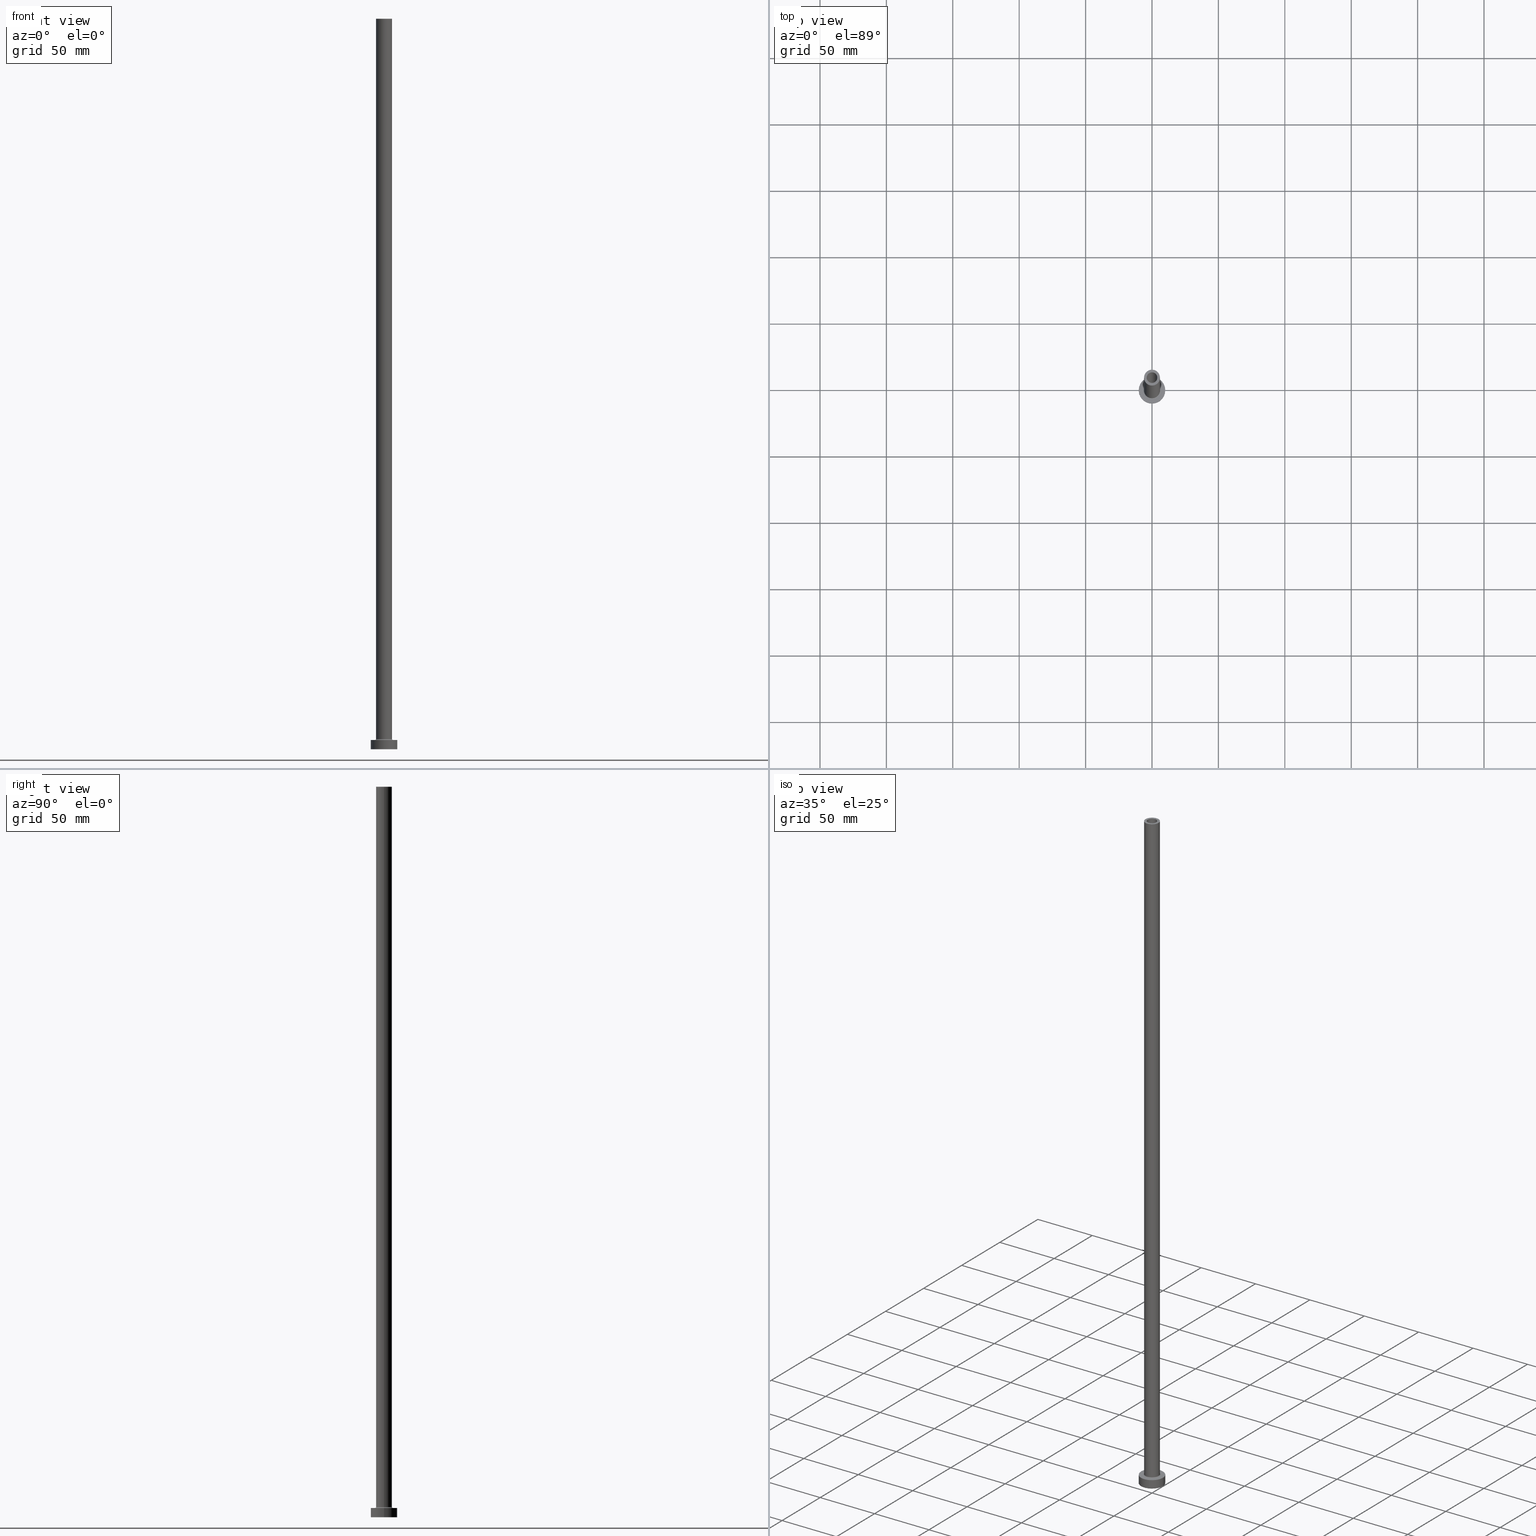
[diagram: canonical four-view strip — front | top / right | iso, engineering-drawing reading convention]
A machine part, canonical four-view strip (front | top / right | iso — engineering-drawing reading convention). The complete STEP part file that produces these views, byte-faithful:
ISO-10303-21;
HEADER;
FILE_DESCRIPTION (( 'STEP AP203' ),
    '1' );
FILE_NAME ('b632.STEP',
    '2023-02-13T12:43:19',
    ( '' ),
    ( '' ),
    'SwSTEP 2.0',
    'SolidWorks 2019',
    '' );
FILE_SCHEMA (( 'CONFIG_CONTROL_DESIGN' ));
ENDSEC;

DATA;
#1 = FACE_BOUND ( 'NONE', #398, .T. ) ;
#2 = CYLINDRICAL_SURFACE ( 'NONE', #156, 4.150000000000000355 ) ;
#3 = DIRECTION ( 'NONE',  ( -1.000000000000000000, 1.224646799147353454E-16, 0.000000000000000000 ) ) ;
#4 = ADVANCED_FACE ( 'NONE', ( #428 ), #293, .F. ) ;
#5 = ORIENTED_EDGE ( 'NONE', *, *, #216, .T. ) ;
#6 = DIRECTION ( 'NONE',  ( 1.000000000000000000, 0.000000000000000000, 0.000000000000000000 ) ) ;
#7 = CIRCLE ( 'NONE', #397, 4.150000000000000355 ) ;
#8 = CARTESIAN_POINT ( 'NONE',  ( -6.700000000000001066, 8.205133554287267548E-16, 7.000000000000020428 ) ) ;
#9 = VERTEX_POINT ( 'NONE', #359 ) ;
#10 = CARTESIAN_POINT ( 'NONE',  ( -6.000000000000000888, 0.000000000000000000, 7.700000000000040146 ) ) ;
#11 = EDGE_CURVE ( 'NONE', #337, #25, #181, .T. ) ;
#12 = ORIENTED_EDGE ( 'NONE', *, *, #277, .F. ) ;
#13 = CYLINDRICAL_SURFACE ( 'NONE', #228, 4.000000000000000000 ) ;
#14 = ORIENTED_EDGE ( 'NONE', *, *, #27, .F. ) ;
#15 = AXIS2_PLACEMENT_3D ( 'NONE', #103, #211, #147 ) ;
#16 = AXIS2_PLACEMENT_3D ( 'NONE', #329, #396, #351 ) ;
#17 = DIRECTION ( 'NONE',  ( 1.000000000000000000, 0.000000000000000000, 0.000000000000000000 ) ) ;
#18 = VERTEX_POINT ( 'NONE', #457 ) ;
#19 = ADVANCED_FACE ( 'NONE', ( #392 ), #2, .F. ) ;
#20 = CARTESIAN_POINT ( 'NONE',  ( 0.000000000000000000, 0.000000000000000000, 505.0000000000000000 ) ) ;
#21 = ORIENTED_EDGE ( 'NONE', *, *, #288, .F. ) ;
#22 = CIRCLE ( 'NONE', #15, 10.00000000000000000 ) ;
#23 = ORIENTED_EDGE ( 'NONE', *, *, #421, .T. ) ;
#24 = LOCAL_TIME ( 13, 43, 19.00000000000000000, #242 ) ;
#25 = VERTEX_POINT ( 'NONE', #325 ) ;
#26 = DIRECTION ( 'NONE',  ( -0.000000000000000000, -0.000000000000000000, -1.000000000000000000 ) ) ;
#27 = EDGE_CURVE ( 'NONE', #56, #9, #254, .T. ) ;
#28 = COORDINATED_UNIVERSAL_TIME_OFFSET ( 1, 0, .AHEAD. ) ;
#29 = LINE ( 'NONE', #107, #362 ) ;
#30 = PERSON_AND_ORGANIZATION_ROLE ( 'creator' ) ;
#31 = ORIENTED_EDGE ( 'NONE', *, *, #399, .F. ) ;
#32 = DIRECTION ( 'NONE',  ( 0.000000000000000000, 0.000000000000000000, 1.000000000000000000 ) ) ;
#33 = AXIS2_PLACEMENT_3D ( 'NONE', #55, #344, #204 ) ;
#34 = PLANE ( 'NONE',  #342 ) ;
#35 = DIRECTION ( 'NONE',  ( 1.000000000000000000, 0.000000000000000000, 0.000000000000000000 ) ) ;
#36 = CARTESIAN_POINT ( 'NONE',  ( 0.000000000000000000, 0.000000000000000000, 550.0000000000000000 ) ) ;
#37 = CARTESIAN_POINT ( 'NONE',  ( -4.000000000000000000, 0.000000000000000000, 550.0000000000000000 ) ) ;
#38 = CARTESIAN_POINT ( 'NONE',  ( -6.000000000000000888, 0.000000000000000000, 550.0000000000000000 ) ) ;
#39 = APPROVAL_PERSON_ORGANIZATION ( #443, #111, #376 ) ;
#40 = DIRECTION ( 'NONE',  ( -1.000000000000000000, 0.000000000000000000, 0.000000000000000000 ) ) ;
#41 = CARTESIAN_POINT ( 'NONE',  ( 10.00000000000000000, 1.224646799147353256E-15, 7.000000000000000000 ) ) ;
#42 = DIRECTION ( 'NONE',  ( 0.000000000000000000, 0.000000000000000000, 1.000000000000000000 ) ) ;
#43 = ORIENTED_EDGE ( 'NONE', *, *, #272, .F. ) ;
#44 = DIRECTION ( 'NONE',  ( -1.000000000000000000, 0.000000000000000000, 0.000000000000000000 ) ) ;
#45 = COORDINATED_UNIVERSAL_TIME_OFFSET ( 1, 0, .AHEAD. ) ;
#46 = CC_DESIGN_APPROVAL ( #368, ( #175 ) ) ;
#47 = VERTEX_POINT ( 'NONE', #8 ) ;
#48 = DIRECTION ( 'NONE',  ( 1.000000000000000000, 0.000000000000000000, 0.000000000000000000 ) ) ;
#49 = APPROVAL_DATE_TIME ( #438, #111 ) ;
#50 = ORIENTED_EDGE ( 'NONE', *, *, #108, .T. ) ;
#51 = DATE_AND_TIME ( #265, #153 ) ;
#52 = AXIS2_PLACEMENT_3D ( 'NONE', #324, #251, #208 ) ;
#53 = FACE_OUTER_BOUND ( 'NONE', #116, .T. ) ;
#54 = CC_DESIGN_APPROVAL ( #111, ( #149 ) ) ;
#55 = CARTESIAN_POINT ( 'NONE',  ( 0.000000000000000000, 0.000000000000000000, 550.0000000000000000 ) ) ;
#56 = VERTEX_POINT ( 'NONE', #180 ) ;
#57 = CARTESIAN_POINT ( 'NONE',  ( -4.150000000000000355, 0.000000000000000000, 0.000000000000000000 ) ) ;
#58 = CALENDAR_DATE ( 2023, 13, 2 ) ;
#59 = ORIENTED_EDGE ( 'NONE', *, *, #295, .F. ) ;
#60 = AXIS2_PLACEMENT_3D ( 'NONE', #401, #305, #48 ) ;
#61 = ORIENTED_EDGE ( 'NONE', *, *, #399, .T. ) ;
#62 = ADVANCED_FACE ( 'NONE', ( #110 ), #413, .F. ) ;
#63 = AXIS2_PLACEMENT_3D ( 'NONE', #441, #377, #163 ) ;
#64 = APPROVAL_DATE_TIME ( #455, #327 ) ;
#65 = ORIENTED_EDGE ( 'NONE', *, *, #152, .F. ) ;
#66 = FACE_OUTER_BOUND ( 'NONE', #177, .T. ) ;
#67 = ORIENTED_EDGE ( 'NONE', *, *, #203, .F. ) ;
#68 = CYLINDRICAL_SURFACE ( 'NONE', #127, 6.000000000000000888 ) ;
#69 = DIRECTION ( 'NONE',  ( 0.000000000000000000, 0.000000000000000000, -1.000000000000000000 ) ) ;
#70 = EDGE_CURVE ( 'NONE', #414, #56, #319, .T. ) ;
#71 = DIRECTION ( 'NONE',  ( 1.000000000000000000, 0.000000000000000000, -0.000000000000000000 ) ) ;
#72 = CIRCLE ( 'NONE', #393, 10.00000000000000000 ) ;
#73 = DIRECTION ( 'NONE',  ( 0.000000000000000000, 0.000000000000000000, -1.000000000000000000 ) ) ;
#74 = CC_DESIGN_PERSON_AND_ORGANIZATION_ASSIGNMENT ( #252, #170, ( #175 ) ) ;
#75 = EDGE_CURVE ( 'NONE', #132, #341, #461, .T. ) ;
#76 = CARTESIAN_POINT ( 'NONE',  ( 0.000000000000000000, 0.000000000000000000, 7.000000000000000000 ) ) ;
#77 = CARTESIAN_POINT ( 'NONE',  ( 0.000000000000000000, 0.000000000000000000, 505.0000000000000000 ) ) ;
#78 = CARTESIAN_POINT ( 'NONE',  ( 0.000000000000000000, 0.000000000000000000, 550.0000000000000000 ) ) ;
#79 = AXIS2_PLACEMENT_3D ( 'NONE', #214, #388, #361 ) ;
#80 = CARTESIAN_POINT ( 'NONE',  ( 0.000000000000000000, 0.000000000000000000, 505.0000000000000000 ) ) ;
#81 = CIRCLE ( 'NONE', #346, 6.700000000000001066 ) ;
#82 = ORIENTED_EDGE ( 'NONE', *, *, #108, .F. ) ;
#83 = CARTESIAN_POINT ( 'NONE',  ( 0.000000000000000000, 0.000000000000000000, 7.700000000000040146 ) ) ;
#84 = VECTOR ( 'NONE', #194, 1000.000000000000000 ) ;
#85 = APPROVAL_STATUS ( 'not_yet_approved' ) ;
#86 = DIRECTION ( 'NONE',  ( -1.000000000000000000, 0.000000000000000000, 0.000000000000000000 ) ) ;
#87 = CARTESIAN_POINT ( 'NONE',  ( -6.000000000000000888, 0.000000000000000000, 550.0000000000000000 ) ) ;
#88 = VERTEX_POINT ( 'NONE', #321 ) ;
#89 = VECTOR ( 'NONE', #207, 1000.000000000000000 ) ;
#90 = EDGE_CURVE ( 'NONE', #25, #341, #22, .T. ) ;
#91 = CARTESIAN_POINT ( 'NONE',  ( 4.150000000000000355, 5.082284216461515156E-16, 516.7379725676967155 ) ) ;
#92 = APPROVAL_STATUS ( 'not_yet_approved' ) ;
#93 = ORIENTED_EDGE ( 'NONE', *, *, #203, .T. ) ;
#94 = CLOSED_SHELL ( 'NONE', ( #144, #4, #366, #193, #456, #197, #389, #248, #379, #282, #62, #19, #133, #439 ) ) ;
#95 = PERSON_AND_ORGANIZATION ( #316, #246 ) ;
#96 = ORIENTED_EDGE ( 'NONE', *, *, #101, .F. ) ;
#97 = LOCAL_TIME ( 13, 43, 19.00000000000000000, #45 ) ;
#98 = DIRECTION ( 'NONE',  ( 0.000000000000000000, 0.000000000000000000, 1.000000000000000000 ) ) ;
#99 = CALENDAR_DATE ( 2023, 13, 2 ) ;
#100 = ORIENTED_EDGE ( 'NONE', *, *, #419, .T. ) ;
#101 = EDGE_CURVE ( 'NONE', #186, #47, #81, .T. ) ;
#102 = DIRECTION ( 'NONE',  ( 0.000000000000000000, 0.000000000000000000, 1.000000000000000000 ) ) ;
#103 = CARTESIAN_POINT ( 'NONE',  ( 0.000000000000000000, 0.000000000000000000, 0.000000000000000000 ) ) ;
#104 = VERTEX_POINT ( 'NONE', #291 ) ;
#105 = PLANE ( 'NONE',  #459 ) ;
#106 = AXIS2_PLACEMENT_3D ( 'NONE', #118, #233, #86 ) ;
#107 = CARTESIAN_POINT ( 'NONE',  ( 6.000000000000000888, 7.347880794884120722E-16, 550.0000000000000000 ) ) ;
#108 = EDGE_CURVE ( 'NONE', #9, #445, #141, .T. ) ;
#109 = LOCAL_TIME ( 13, 43, 19.00000000000000000, #28 ) ;
#110 = FACE_OUTER_BOUND ( 'NONE', #231, .T. ) ;
#111 = APPROVAL ( #303, 'NEUR�EN�' ) ;
#112 = ORIENTED_EDGE ( 'NONE', *, *, #90, .T. ) ;
#113 = AXIS2_PLACEMENT_3D ( 'NONE', #352, #138, #320 ) ;
#114 = ORIENTED_EDGE ( 'NONE', *, *, #218, .T. ) ;
#115 = EDGE_CURVE ( 'NONE', #341, #25, #402, .T. ) ;
#116 = EDGE_LOOP ( 'NONE', ( #128, #350, #357, #232 ) ) ;
#117 = DIRECTION ( 'NONE',  ( -0.000000000000000000, -0.000000000000000000, -1.000000000000000000 ) ) ;
#118 = CARTESIAN_POINT ( 'NONE',  ( 0.000000000000000000, 0.000000000000000000, 7.000000000000000000 ) ) ;
#119 = ORIENTED_EDGE ( 'NONE', *, *, #272, .T. ) ;
#120 =( GEOMETRIC_REPRESENTATION_CONTEXT ( 3 ) GLOBAL_UNCERTAINTY_ASSIGNED_CONTEXT ( ( #206 ) ) GLOBAL_UNIT_ASSIGNED_CONTEXT ( ( #404, #308, #406 ) ) REPRESENTATION_CONTEXT ( 'NONE', 'WORKASPACE' ) );
#121 = CYLINDRICAL_SURFACE ( 'NONE', #106, 10.00000000000000000 ) ;
#122 = PERSON_AND_ORGANIZATION ( #316, #246 ) ;
#123 = LINE ( 'NONE', #135, #84 ) ;
#124 = VECTOR ( 'NONE', #73, 1000.000000000000000 ) ;
#125 = CARTESIAN_POINT ( 'NONE',  ( 0.000000000000000000, 0.000000000000000000, 550.0000000000000000 ) ) ;
#126 = PERSON_AND_ORGANIZATION_ROLE ( 'design_supplier' ) ;
#127 = AXIS2_PLACEMENT_3D ( 'NONE', #78, #219, #209 ) ;
#128 = ORIENTED_EDGE ( 'NONE', *, *, #421, .F. ) ;
#129 = EDGE_CURVE ( 'NONE', #47, #186, #423, .T. ) ;
#130 = CYLINDRICAL_SURFACE ( 'NONE', #261, 6.000000000000000888 ) ;
#131 = SHAPE_DEFINITION_REPRESENTATION ( #382, #338 ) ;
#132 = VERTEX_POINT ( 'NONE', #41 ) ;
#133 = ADVANCED_FACE ( 'NONE', ( #184, #432 ), #400, .F. ) ;
#134 = EDGE_LOOP ( 'NONE', ( #326, #286, #198, #67 ) ) ;
#135 = CARTESIAN_POINT ( 'NONE',  ( 4.000000000000000000, 4.898587196589412829E-16, 550.0000000000000000 ) ) ;
#136 = VECTOR ( 'NONE', #387, 1000.000000000000000 ) ;
#137 = DIRECTION ( 'NONE',  ( 0.000000000000000000, 0.000000000000000000, 1.000000000000000000 ) ) ;
#138 = DIRECTION ( 'NONE',  ( 0.000000000000000000, -1.000000000000000000, 0.000000000000000000 ) ) ;
#139 = CARTESIAN_POINT ( 'NONE',  ( 0.000000000000000000, 0.000000000000000000, 516.7379725676967155 ) ) ;
#140 = DIRECTION ( 'NONE',  ( 0.000000000000000000, 0.000000000000000000, 1.000000000000000000 ) ) ;
#141 = CIRCLE ( 'NONE', #222, 4.000000000000000000 ) ;
#142 = ORIENTED_EDGE ( 'NONE', *, *, #460, .F. ) ;
#143 = CIRCLE ( 'NONE', #16, 4.150000000000000355 ) ;
#144 = ADVANCED_FACE ( 'NONE', ( #333 ), #13, .F. ) ;
#145 = CARTESIAN_POINT ( 'NONE',  ( 0.000000000000000000, 0.000000000000000000, 7.700000000000040146 ) ) ;
#146 = EDGE_CURVE ( 'NONE', #247, #18, #7, .T. ) ;
#147 = DIRECTION ( 'NONE',  ( 1.000000000000000000, 0.000000000000000000, 0.000000000000000000 ) ) ;
#148 = APPLICATION_PROTOCOL_DEFINITION ( 'international standard', 'config_control_design', 1994, #165 ) ;
#149 = PRODUCT_DEFINITION ( 'NEZN�M�', '', #450, #225 ) ;
#150 = DIRECTION ( 'NONE',  ( 1.000000000000000000, 0.000000000000000000, 0.000000000000000000 ) ) ;
#151 = ORIENTED_EDGE ( 'NONE', *, *, #237, .F. ) ;
#152 = EDGE_CURVE ( 'NONE', #407, #373, #187, .T. ) ;
#153 = LOCAL_TIME ( 13, 43, 19.00000000000000000, #189 ) ;
#154 = CC_DESIGN_PERSON_AND_ORGANIZATION_ASSIGNMENT ( #95, #126, ( #450 ) ) ;
#155 = MECHANICAL_CONTEXT ( 'NONE', #427, 'mechanical' ) ;
#156 = AXIS2_PLACEMENT_3D ( 'NONE', #139, #69, #40 ) ;
#157 = MANIFOLD_SOLID_BREP ( 'Odebrat vysunut�m4', #94 ) ;
#158 = DIRECTION ( 'NONE',  ( 1.000000000000000000, 0.000000000000000000, 0.000000000000000000 ) ) ;
#159 = ORIENTED_EDGE ( 'NONE', *, *, #11, .T. ) ;
#160 = CARTESIAN_POINT ( 'NONE',  ( 0.000000000000000000, 0.000000000000000000, 7.000000000000000000 ) ) ;
#161 = CALENDAR_DATE ( 2023, 13, 2 ) ;
#162 = DIRECTION ( 'NONE',  ( 0.000000000000000000, 0.000000000000000000, 1.000000000000000000 ) ) ;
#163 = DIRECTION ( 'NONE',  ( -1.000000000000000000, 0.000000000000000000, 0.000000000000000000 ) ) ;
#164 = AXIS2_PLACEMENT_3D ( 'NONE', #220, #354, #171 ) ;
#165 = APPLICATION_CONTEXT ( 'configuration controlled 3d designs of mechanical parts and assemblies' ) ;
#166 = CC_DESIGN_DATE_AND_TIME_ASSIGNMENT ( #51, #274, ( #149 ) ) ;
#167 = DIRECTION ( 'NONE',  ( 1.000000000000000000, 0.000000000000000000, 0.000000000000000000 ) ) ;
#168 = APPROVAL_DATE_TIME ( #313, #368 ) ;
#169 = CARTESIAN_POINT ( 'NONE',  ( 0.000000000000000000, 0.000000000000000000, 505.0000000000000000 ) ) ;
#170 = PERSON_AND_ORGANIZATION_ROLE ( 'classification_officer' ) ;
#171 = DIRECTION ( 'NONE',  ( -1.000000000000000000, 0.000000000000000000, 0.000000000000000000 ) ) ;
#172 = DIRECTION ( 'NONE',  ( 0.000000000000000000, 0.000000000000000000, 1.000000000000000000 ) ) ;
#173 = DIRECTION ( 'NONE',  ( -0.000000000000000000, -0.000000000000000000, -1.000000000000000000 ) ) ;
#174 = CIRCLE ( 'NONE', #182, 6.000000000000000888 ) ;
#175 = SECURITY_CLASSIFICATION ( '', '', #250 ) ;
#176 = EDGE_LOOP ( 'NONE', ( #50, #93 ) ) ;
#177 = EDGE_LOOP ( 'NONE', ( #100, #23 ) ) ;
#178 = CARTESIAN_POINT ( 'NONE',  ( 0.000000000000000000, 0.000000000000000000, 7.000000000000000000 ) ) ;
#179 = LINE ( 'NONE', #294, #322 ) ;
#180 = CARTESIAN_POINT ( 'NONE',  ( -4.000000000000000000, 0.000000000000000000, 550.0000000000000000 ) ) ;
#181 = LINE ( 'NONE', #331, #360 ) ;
#182 = AXIS2_PLACEMENT_3D ( 'NONE', #287, #137, #358 ) ;
#183 = DIRECTION ( 'NONE',  ( -0.000000000000000000, -0.000000000000000000, -1.000000000000000000 ) ) ;
#184 = FACE_BOUND ( 'NONE', #176, .T. ) ;
#185 = DIRECTION ( 'NONE',  ( 1.000000000000000000, 0.000000000000000000, -0.000000000000000000 ) ) ;
#186 = VERTEX_POINT ( 'NONE', #447 ) ;
#187 = CIRCLE ( 'NONE', #267, 6.000000000000000888 ) ;
#188 = DIRECTION ( 'NONE',  ( 0.000000000000000000, 0.000000000000000000, -1.000000000000000000 ) ) ;
#189 = COORDINATED_UNIVERSAL_TIME_OFFSET ( 1, 0, .AHEAD. ) ;
#190 = ORIENTED_EDGE ( 'NONE', *, *, #152, .T. ) ;
#191 = VECTOR ( 'NONE', #173, 1000.000000000000000 ) ;
#192 = ORIENTED_EDGE ( 'NONE', *, *, #223, .F. ) ;
#193 = ADVANCED_FACE ( 'NONE', ( #310 ), #130, .T. ) ;
#194 = DIRECTION ( 'NONE',  ( 0.000000000000000000, 0.000000000000000000, -1.000000000000000000 ) ) ;
#195 = AXIS2_PLACEMENT_3D ( 'NONE', #20, #240, #384 ) ;
#196 = CARTESIAN_POINT ( 'NONE',  ( 0.000000000000000000, 0.000000000000000000, 550.0000000000000000 ) ) ;
#197 = ADVANCED_FACE ( 'NONE', ( #244 ), #412, .T. ) ;
#198 = ORIENTED_EDGE ( 'NONE', *, *, #27, .T. ) ;
#199 = FACE_OUTER_BOUND ( 'NONE', #283, .T. ) ;
#200 = CALENDAR_DATE ( 2023, 13, 2 ) ;
#201 = PRODUCT_RELATED_PRODUCT_CATEGORY ( 'detail', '', ( #370 ) ) ;
#202 = EDGE_LOOP ( 'NONE', ( #31, #309, #190, #280 ) ) ;
#203 = EDGE_CURVE ( 'NONE', #445, #9, #409, .T. ) ;
#204 = DIRECTION ( 'NONE',  ( 1.000000000000000000, 0.000000000000000000, 0.000000000000000000 ) ) ;
#205 = PERSON_AND_ORGANIZATION ( #316, #246 ) ;
#206 = UNCERTAINTY_MEASURE_WITH_UNIT (LENGTH_MEASURE( 1.000000000000000082E-05 ), #404, 'distance_accuracy_value', 'NONE');
#207 = DIRECTION ( 'NONE',  ( 0.000000000000000000, 0.000000000000000000, -1.000000000000000000 ) ) ;
#208 = DIRECTION ( 'NONE',  ( 1.000000000000000000, 0.000000000000000000, -0.000000000000000000 ) ) ;
#209 = DIRECTION ( 'NONE',  ( -1.000000000000000000, 0.000000000000000000, 0.000000000000000000 ) ) ;
#210 = CC_DESIGN_PERSON_AND_ORGANIZATION_ASSIGNMENT ( #122, #270, ( #149 ) ) ;
#211 = DIRECTION ( 'NONE',  ( 0.000000000000000000, 0.000000000000000000, 1.000000000000000000 ) ) ;
#212 = ORIENTED_EDGE ( 'NONE', *, *, #146, .T. ) ;
#213 = CIRCLE ( 'NONE', #353, 4.150000000000000355 ) ;
#214 = CARTESIAN_POINT ( 'NONE',  ( 0.000000000000000000, 0.000000000000000000, 7.700000000000040146 ) ) ;
#215 = CARTESIAN_POINT ( 'NONE',  ( 0.000000000000000000, 0.000000000000000000, 550.0000000000000000 ) ) ;
#216 = EDGE_CURVE ( 'NONE', #442, #18, #278, .T. ) ;
#217 = ORIENTED_EDGE ( 'NONE', *, *, #75, .F. ) ;
#218 = EDGE_CURVE ( 'NONE', #414, #445, #123, .T. ) ;
#219 = DIRECTION ( 'NONE',  ( -0.000000000000000000, -0.000000000000000000, -1.000000000000000000 ) ) ;
#220 = CARTESIAN_POINT ( 'NONE',  ( 0.000000000000000000, 0.000000000000000000, 516.7379725676967155 ) ) ;
#221 = FACE_OUTER_BOUND ( 'NONE', #307, .T. ) ;
#222 = AXIS2_PLACEMENT_3D ( 'NONE', #77, #374, #158 ) ;
#223 = EDGE_CURVE ( 'NONE', #88, #442, #213, .T. ) ;
#224 = CARTESIAN_POINT ( 'NONE',  ( 0.000000000000000000, 0.000000000000000000, 7.700000000000040146 ) ) ;
#225 = DESIGN_CONTEXT ( 'detailed design', #165, 'design' ) ;
#226 = ORIENTED_EDGE ( 'NONE', *, *, #115, .F. ) ;
#227 = CARTESIAN_POINT ( 'NONE',  ( 0.000000000000000000, 0.000000000000000000, 550.0000000000000000 ) ) ;
#228 = AXIS2_PLACEMENT_3D ( 'NONE', #227, #188, #44 ) ;
#229 = EDGE_CURVE ( 'NONE', #56, #414, #349, .T. ) ;
#230 = DIRECTION ( 'NONE',  ( 1.000000000000000000, 0.000000000000000000, 0.000000000000000000 ) ) ;
#231 = EDGE_LOOP ( 'NONE', ( #59, #65, #263, #367 ) ) ;
#232 = ORIENTED_EDGE ( 'NONE', *, *, #11, .F. ) ;
#233 = DIRECTION ( 'NONE',  ( -0.000000000000000000, -0.000000000000000000, -1.000000000000000000 ) ) ;
#234 = EDGE_LOOP ( 'NONE', ( #411, #302, #347, #212 ) ) ;
#235 = DIRECTION ( 'NONE',  ( 0.000000000000000000, 0.000000000000000000, 1.000000000000000000 ) ) ;
#236 = AXIS2_PLACEMENT_3D ( 'NONE', #160, #26, #348 ) ;
#237 = EDGE_CURVE ( 'NONE', #442, #88, #335, .T. ) ;
#238 = APPROVAL_ROLE ( '' ) ;
#239 = LOCAL_TIME ( 13, 43, 19.00000000000000000, #418 ) ;
#240 = DIRECTION ( 'NONE',  ( 0.000000000000000000, 0.000000000000000000, 1.000000000000000000 ) ) ;
#241 = CC_DESIGN_PERSON_AND_ORGANIZATION_ASSIGNMENT ( #385, #30, ( #450 ) ) ;
#242 = COORDINATED_UNIVERSAL_TIME_OFFSET ( 1, 0, .AHEAD. ) ;
#243 = EDGE_LOOP ( 'NONE', ( #434, #5, #119, #21 ) ) ;
#244 = FACE_OUTER_BOUND ( 'NONE', #453, .T. ) ;
#245 = APPROVAL_ROLE ( '' ) ;
#246 = ORGANIZATION ( 'NEUR�EN�', 'NEUR�EN�', '' ) ;
#247 = VERTEX_POINT ( 'NONE', #57 ) ;
#248 = ADVANCED_FACE ( 'NONE', ( #314, #199 ), #452, .F. ) ;
#249 = DIRECTION ( 'NONE',  ( 0.000000000000000000, 0.000000000000000000, -1.000000000000000000 ) ) ;
#250 = SECURITY_CLASSIFICATION_LEVEL ( 'unclassified' ) ;
#251 = DIRECTION ( 'NONE',  ( 0.000000000000000000, 0.000000000000000000, 1.000000000000000000 ) ) ;
#252 = PERSON_AND_ORGANIZATION ( #316, #246 ) ;
#253 = CARTESIAN_POINT ( 'NONE',  ( 0.000000000000000000, 0.000000000000000000, 7.000000000000000000 ) ) ;
#254 = LINE ( 'NONE', #37, #124 ) ;
#255 = CIRCLE ( 'NONE', #449, 6.000000000000000888 ) ;
#256 = CIRCLE ( 'NONE', #304, 10.00000000000000000 ) ;
#257 = APPROVAL_PERSON_ORGANIZATION ( #205, #368, #245 ) ;
#258 = LINE ( 'NONE', #38, #136 ) ;
#259 = ORIENTED_EDGE ( 'NONE', *, *, #90, .F. ) ;
#260 = FACE_OUTER_BOUND ( 'NONE', #332, .T. ) ;
#261 = AXIS2_PLACEMENT_3D ( 'NONE', #125, #381, #343 ) ;
#262 = ORIENTED_EDGE ( 'NONE', *, *, #419, .F. ) ;
#263 = ORIENTED_EDGE ( 'NONE', *, *, #395, .T. ) ;
#264 = DIRECTION ( 'NONE',  ( 1.000000000000000000, 0.000000000000000000, 0.000000000000000000 ) ) ;
#265 = CALENDAR_DATE ( 2023, 13, 2 ) ;
#266 = EDGE_LOOP ( 'NONE', ( #328, #43 ) ) ;
#267 = AXIS2_PLACEMENT_3D ( 'NONE', #83, #371, #454 ) ;
#268 = DIRECTION ( 'NONE',  ( 0.000000000000000000, 0.000000000000000000, 1.000000000000000000 ) ) ;
#269 = CARTESIAN_POINT ( 'NONE',  ( 0.000000000000000000, 0.000000000000000000, 7.000000000000000000 ) ) ;
#270 = PERSON_AND_ORGANIZATION_ROLE ( 'creator' ) ;
#271 = ORIENTED_EDGE ( 'NONE', *, *, #460, .T. ) ;
#272 = EDGE_CURVE ( 'NONE', #18, #247, #143, .T. ) ;
#273 = CARTESIAN_POINT ( 'NONE',  ( 0.000000000000000000, 0.000000000000000000, 505.0000000000000000 ) ) ;
#274 = DATE_TIME_ROLE ( 'creation_date' ) ;
#275 = CYLINDRICAL_SURFACE ( 'NONE', #63, 4.000000000000000000 ) ;
#276 = EDGE_LOOP ( 'NONE', ( #192, #151 ) ) ;
#277 = EDGE_CURVE ( 'NONE', #373, #407, #255, .T. ) ;
#278 = LINE ( 'NONE', #91, #89 ) ;
#279 = CIRCLE ( 'NONE', #113, 0.7000000000000000666 ) ;
#280 = ORIENTED_EDGE ( 'NONE', *, *, #306, .F. ) ;
#281 = ORIENTED_EDGE ( 'NONE', *, *, #129, .T. ) ;
#282 = ADVANCED_FACE ( 'NONE', ( #297, #394 ), #105, .T. ) ;
#283 = EDGE_LOOP ( 'NONE', ( #259, #226 ) ) ;
#284 = AXIS2_PLACEMENT_3D ( 'NONE', #425, #391, #3 ) ;
#285 = CARTESIAN_POINT ( 'NONE',  ( 6.000000000000000888, 7.347880794884120722E-16, 7.700000000000040146 ) ) ;
#286 = ORIENTED_EDGE ( 'NONE', *, *, #70, .T. ) ;
#287 = CARTESIAN_POINT ( 'NONE',  ( 0.000000000000000000, 0.000000000000000000, 550.0000000000000000 ) ) ;
#288 = EDGE_CURVE ( 'NONE', #88, #247, #179, .T. ) ;
#289 = DIRECTION ( 'NONE',  ( 1.000000000000000000, 0.000000000000000000, 0.000000000000000000 ) ) ;
#290 = EDGE_CURVE ( 'NONE', #104, #407, #29, .T. ) ;
#291 = CARTESIAN_POINT ( 'NONE',  ( 6.000000000000000888, 7.347880794884120722E-16, 550.0000000000000000 ) ) ;
#292 = PERSON_AND_ORGANIZATION ( #316, #246 ) ;
#293 = CYLINDRICAL_SURFACE ( 'NONE', #164, 4.150000000000000355 ) ;
#294 = CARTESIAN_POINT ( 'NONE',  ( -4.150000000000000355, 0.000000000000000000, 516.7379725676967155 ) ) ;
#295 = EDGE_CURVE ( 'NONE', #373, #47, #433, .T. ) ;
#296 = DIRECTION ( 'NONE',  ( 0.000000000000000000, 0.000000000000000000, 1.000000000000000000 ) ) ;
#297 = FACE_BOUND ( 'NONE', #323, .T. ) ;
#298 = DIRECTION ( 'NONE',  ( 0.000000000000000000, 0.000000000000000000, 1.000000000000000000 ) ) ;
#299 = ORIENTED_EDGE ( 'NONE', *, *, #277, .T. ) ;
#300 = TOROIDAL_SURFACE ( 'NONE', #79, 6.700000000000001066, 0.6999999999999999556 ) ;
#301 = APPROVAL_PERSON_ORGANIZATION ( #403, #327, #238 ) ;
#302 = ORIENTED_EDGE ( 'NONE', *, *, #237, .T. ) ;
#303 = APPROVAL_STATUS ( 'not_yet_approved' ) ;
#304 = AXIS2_PLACEMENT_3D ( 'NONE', #253, #140, #422 ) ;
#305 = DIRECTION ( 'NONE',  ( 0.000000000000000000, 0.000000000000000000, 1.000000000000000000 ) ) ;
#306 = EDGE_CURVE ( 'NONE', #431, #373, #258, .T. ) ;
#307 = EDGE_LOOP ( 'NONE', ( #12, #334, #96, #435 ) ) ;
#308 =( NAMED_UNIT ( * ) PLANE_ANGLE_UNIT ( ) SI_UNIT ( $, .RADIAN. ) );
#309 = ORIENTED_EDGE ( 'NONE', *, *, #290, .T. ) ;
#310 = FACE_OUTER_BOUND ( 'NONE', #202, .T. ) ;
#311 = CIRCLE ( 'NONE', #369, 6.000000000000000888 ) ;
#312 = CC_DESIGN_APPROVAL ( #327, ( #450 ) ) ;
#313 = DATE_AND_TIME ( #200, #24 ) ;
#314 = FACE_BOUND ( 'NONE', #266, .T. ) ;
#315 = ORIENTED_EDGE ( 'NONE', *, *, #306, .T. ) ;
#316 = PERSON ( 'NEUR�EN�', 'NEUR�EN�', 'NEUR�EN�', ('NEUR�EN�'), ('NEUR�EN�'), ('NEUR�EN�') ) ;
#317 = DATE_AND_TIME ( #58, #109 ) ;
#318 = DIRECTION ( 'NONE',  ( -0.000000000000000000, -0.000000000000000000, -1.000000000000000000 ) ) ;
#319 = CIRCLE ( 'NONE', #390, 4.000000000000000000 ) ;
#320 = DIRECTION ( 'NONE',  ( 0.000000000000000000, 0.000000000000000000, -1.000000000000000000 ) ) ;
#321 = CARTESIAN_POINT ( 'NONE',  ( -4.150000000000000355, 0.000000000000000000, 505.0000000000000000 ) ) ;
#322 = VECTOR ( 'NONE', #249, 1000.000000000000000 ) ;
#323 = EDGE_LOOP ( 'NONE', ( #451, #408 ) ) ;
#324 = CARTESIAN_POINT ( 'NONE',  ( 0.000000000000000000, 0.000000000000000000, 0.000000000000000000 ) ) ;
#325 = CARTESIAN_POINT ( 'NONE',  ( -10.00000000000000000, 0.000000000000000000, 0.000000000000000000 ) ) ;
#326 = ORIENTED_EDGE ( 'NONE', *, *, #218, .F. ) ;
#327 = APPROVAL ( #85, 'NEUR�EN�' ) ;
#328 = ORIENTED_EDGE ( 'NONE', *, *, #146, .F. ) ;
#329 = CARTESIAN_POINT ( 'NONE',  ( 0.000000000000000000, 0.000000000000000000, 0.000000000000000000 ) ) ;
#330 = AXIS2_PLACEMENT_3D ( 'NONE', #80, #42, #185 ) ;
#331 = CARTESIAN_POINT ( 'NONE',  ( -10.00000000000000000, 0.000000000000000000, 7.000000000000000000 ) ) ;
#332 = EDGE_LOOP ( 'NONE', ( #339, #142, #315, #299 ) ) ;
#333 = FACE_OUTER_BOUND ( 'NONE', #365, .T. ) ;
#334 = ORIENTED_EDGE ( 'NONE', *, *, #295, .T. ) ;
#335 = CIRCLE ( 'NONE', #195, 4.150000000000000355 ) ;
#336 = CARTESIAN_POINT ( 'NONE',  ( 4.150000000000000355, 5.082284216461515156E-16, 505.0000000000000000 ) ) ;
#337 = VERTEX_POINT ( 'NONE', #458 ) ;
#338 = ADVANCED_BREP_SHAPE_REPRESENTATION ( 'b632', ( #157, #440 ), #120 ) ;
#339 = ORIENTED_EDGE ( 'NONE', *, *, #290, .F. ) ;
#340 = AXIS2_PLACEMENT_3D ( 'NONE', #224, #296, #417 ) ;
#341 = VERTEX_POINT ( 'NONE', #420 ) ;
#342 = AXIS2_PLACEMENT_3D ( 'NONE', #76, #172, #355 ) ;
#343 = DIRECTION ( 'NONE',  ( -1.000000000000000000, 0.000000000000000000, 0.000000000000000000 ) ) ;
#344 = DIRECTION ( 'NONE',  ( 0.000000000000000000, 0.000000000000000000, 1.000000000000000000 ) ) ;
#345 = APPLICATION_PROTOCOL_DEFINITION ( 'international standard', 'config_control_design', 1994, #427 ) ;
#346 = AXIS2_PLACEMENT_3D ( 'NONE', #426, #356, #35 ) ;
#347 = ORIENTED_EDGE ( 'NONE', *, *, #288, .T. ) ;
#348 = DIRECTION ( 'NONE',  ( -1.000000000000000000, 0.000000000000000000, 0.000000000000000000 ) ) ;
#349 = CIRCLE ( 'NONE', #33, 4.000000000000000000 ) ;
#350 = ORIENTED_EDGE ( 'NONE', *, *, #75, .T. ) ;
#351 = DIRECTION ( 'NONE',  ( 1.000000000000000000, 0.000000000000000000, 0.000000000000000000 ) ) ;
#352 = CARTESIAN_POINT ( 'NONE',  ( 6.700000000000001066, 0.000000000000000000, 7.700000000000040146 ) ) ;
#353 = AXIS2_PLACEMENT_3D ( 'NONE', #273, #235, #167 ) ;
#354 = DIRECTION ( 'NONE',  ( 0.000000000000000000, 0.000000000000000000, -1.000000000000000000 ) ) ;
#355 = DIRECTION ( 'NONE',  ( 1.000000000000000000, 0.000000000000000000, -0.000000000000000000 ) ) ;
#356 = DIRECTION ( 'NONE',  ( -0.000000000000000000, -0.000000000000000000, -1.000000000000000000 ) ) ;
#357 = ORIENTED_EDGE ( 'NONE', *, *, #115, .T. ) ;
#358 = DIRECTION ( 'NONE',  ( 1.000000000000000000, 0.000000000000000000, 0.000000000000000000 ) ) ;
#359 = CARTESIAN_POINT ( 'NONE',  ( -4.000000000000000000, 0.000000000000000000, 505.0000000000000000 ) ) ;
#360 = VECTOR ( 'NONE', #318, 1000.000000000000000 ) ;
#361 = DIRECTION ( 'NONE',  ( 1.000000000000000000, 0.000000000000000000, 0.000000000000000000 ) ) ;
#362 = VECTOR ( 'NONE', #183, 1000.000000000000000 ) ;
#363 = CARTESIAN_POINT ( 'NONE',  ( 0.000000000000000000, 0.000000000000000000, 0.000000000000000000 ) ) ;
#364 = DIRECTION ( 'NONE',  ( 1.000000000000000000, 0.000000000000000000, 0.000000000000000000 ) ) ;
#365 = EDGE_LOOP ( 'NONE', ( #386, #114, #82, #14 ) ) ;
#366 = ADVANCED_FACE ( 'NONE', ( #221 ), #300, .F. ) ;
#367 = ORIENTED_EDGE ( 'NONE', *, *, #129, .F. ) ;
#368 = APPROVAL ( #92, 'NEUR�EN�' ) ;
#369 = AXIS2_PLACEMENT_3D ( 'NONE', #196, #268, #230 ) ;
#370 = PRODUCT ( 'b632', 'b632', '', ( #155 ) ) ;
#371 = DIRECTION ( 'NONE',  ( 0.000000000000000000, 0.000000000000000000, 1.000000000000000000 ) ) ;
#372 = CARTESIAN_POINT ( 'NONE',  ( 4.000000000000000000, 4.898587196589412829E-16, 505.0000000000000000 ) ) ;
#373 = VERTEX_POINT ( 'NONE', #10 ) ;
#374 = DIRECTION ( 'NONE',  ( 0.000000000000000000, 0.000000000000000000, 1.000000000000000000 ) ) ;
#375 = DIRECTION ( 'NONE',  ( 1.000000000000000000, 0.000000000000000000, 0.000000000000000000 ) ) ;
#376 = APPROVAL_ROLE ( '' ) ;
#377 = DIRECTION ( 'NONE',  ( 0.000000000000000000, 0.000000000000000000, -1.000000000000000000 ) ) ;
#378 = AXIS2_PLACEMENT_3D ( 'NONE', #169, #98, #375 ) ;
#379 = ADVANCED_FACE ( 'NONE', ( #260 ), #68, .T. ) ;
#380 = CC_DESIGN_SECURITY_CLASSIFICATION ( #175, ( #450 ) ) ;
#381 = DIRECTION ( 'NONE',  ( -0.000000000000000000, -0.000000000000000000, -1.000000000000000000 ) ) ;
#382 = PRODUCT_DEFINITION_SHAPE ( 'NONE', 'NONE',  #149 ) ;
#383 = EDGE_LOOP ( 'NONE', ( #271, #61 ) ) ;
#384 = DIRECTION ( 'NONE',  ( 1.000000000000000000, 0.000000000000000000, 0.000000000000000000 ) ) ;
#385 = PERSON_AND_ORGANIZATION ( #316, #246 ) ;
#386 = ORIENTED_EDGE ( 'NONE', *, *, #229, .T. ) ;
#387 = DIRECTION ( 'NONE',  ( -0.000000000000000000, -0.000000000000000000, -1.000000000000000000 ) ) ;
#388 = DIRECTION ( 'NONE',  ( 0.000000000000000000, 0.000000000000000000, 1.000000000000000000 ) ) ;
#389 = ADVANCED_FACE ( 'NONE', ( #1, #66 ), #34, .T. ) ;
#390 = AXIS2_PLACEMENT_3D ( 'NONE', #215, #298, #364 ) ;
#391 = DIRECTION ( 'NONE',  ( 1.224646799147353207E-16, 1.000000000000000000, -0.000000000000000000 ) ) ;
#392 = FACE_OUTER_BOUND ( 'NONE', #234, .T. ) ;
#393 = AXIS2_PLACEMENT_3D ( 'NONE', #178, #102, #289 ) ;
#394 = FACE_OUTER_BOUND ( 'NONE', #383, .T. ) ;
#395 = EDGE_CURVE ( 'NONE', #407, #186, #279, .T. ) ;
#396 = DIRECTION ( 'NONE',  ( -0.000000000000000000, -0.000000000000000000, -1.000000000000000000 ) ) ;
#397 = AXIS2_PLACEMENT_3D ( 'NONE', #437, #117, #264 ) ;
#398 = EDGE_LOOP ( 'NONE', ( #446, #281 ) ) ;
#399 = EDGE_CURVE ( 'NONE', #104, #431, #174, .T. ) ;
#400 = PLANE ( 'NONE',  #330 ) ;
#401 = CARTESIAN_POINT ( 'NONE',  ( 0.000000000000000000, 0.000000000000000000, 0.000000000000000000 ) ) ;
#402 = CIRCLE ( 'NONE', #60, 10.00000000000000000 ) ;
#403 = PERSON_AND_ORGANIZATION ( #316, #246 ) ;
#404 =( LENGTH_UNIT ( ) NAMED_UNIT ( * ) SI_UNIT ( .MILLI., .METRE. ) );
#405 = DIRECTION ( 'NONE',  ( -0.000000000000000000, -0.000000000000000000, -1.000000000000000000 ) ) ;
#406 =( NAMED_UNIT ( * ) SI_UNIT ( $, .STERADIAN. ) SOLID_ANGLE_UNIT ( ) );
#407 = VERTEX_POINT ( 'NONE', #285 ) ;
#408 = ORIENTED_EDGE ( 'NONE', *, *, #70, .F. ) ;
#409 = CIRCLE ( 'NONE', #378, 4.000000000000000000 ) ;
#410 = DATE_TIME_ROLE ( 'classification_date' ) ;
#411 = ORIENTED_EDGE ( 'NONE', *, *, #216, .F. ) ;
#412 = CYLINDRICAL_SURFACE ( 'NONE', #236, 10.00000000000000000 ) ;
#413 = TOROIDAL_SURFACE ( 'NONE', #340, 6.700000000000001066, 0.6999999999999999556 ) ;
#414 = VERTEX_POINT ( 'NONE', #416 ) ;
#415 = AXIS2_PLACEMENT_3D ( 'NONE', #269, #405, #150 ) ;
#416 = CARTESIAN_POINT ( 'NONE',  ( 4.000000000000000000, 4.898587196589412829E-16, 550.0000000000000000 ) ) ;
#417 = DIRECTION ( 'NONE',  ( 1.000000000000000000, 0.000000000000000000, 0.000000000000000000 ) ) ;
#418 = COORDINATED_UNIVERSAL_TIME_OFFSET ( 1, 0, .AHEAD. ) ;
#419 = EDGE_CURVE ( 'NONE', #337, #132, #72, .T. ) ;
#420 = CARTESIAN_POINT ( 'NONE',  ( 10.00000000000000000, 1.224646799147353256E-15, 0.000000000000000000 ) ) ;
#421 = EDGE_CURVE ( 'NONE', #132, #337, #256, .T. ) ;
#422 = DIRECTION ( 'NONE',  ( 1.000000000000000000, 0.000000000000000000, 0.000000000000000000 ) ) ;
#423 = CIRCLE ( 'NONE', #415, 6.700000000000001066 ) ;
#424 = PERSON_AND_ORGANIZATION_ROLE ( 'design_owner' ) ;
#425 = CARTESIAN_POINT ( 'NONE',  ( -6.700000000000001066, 8.205133554287267548E-16, 7.700000000000040146 ) ) ;
#426 = CARTESIAN_POINT ( 'NONE',  ( 0.000000000000000000, 0.000000000000000000, 7.000000000000000000 ) ) ;
#427 = APPLICATION_CONTEXT ( 'configuration controlled 3d designs of mechanical parts and assemblies' ) ;
#428 = FACE_OUTER_BOUND ( 'NONE', #243, .T. ) ;
#429 = DIRECTION ( 'NONE',  ( 0.000000000000000000, 0.000000000000000000, 1.000000000000000000 ) ) ;
#430 = CARTESIAN_POINT ( 'NONE',  ( 10.00000000000000000, 1.224646799147353256E-15, 7.000000000000000000 ) ) ;
#431 = VERTEX_POINT ( 'NONE', #87 ) ;
#432 = FACE_OUTER_BOUND ( 'NONE', #276, .T. ) ;
#433 = CIRCLE ( 'NONE', #284, 0.7000000000000000666 ) ;
#434 = ORIENTED_EDGE ( 'NONE', *, *, #223, .T. ) ;
#435 = ORIENTED_EDGE ( 'NONE', *, *, #395, .F. ) ;
#436 = CC_DESIGN_PERSON_AND_ORGANIZATION_ASSIGNMENT ( #292, #424, ( #370 ) ) ;
#437 = CARTESIAN_POINT ( 'NONE',  ( 0.000000000000000000, 0.000000000000000000, 0.000000000000000000 ) ) ;
#438 = DATE_AND_TIME ( #161, #97 ) ;
#439 = ADVANCED_FACE ( 'NONE', ( #444 ), #275, .F. ) ;
#440 = AXIS2_PLACEMENT_3D ( 'NONE', #363, #162, #17 ) ;
#441 = CARTESIAN_POINT ( 'NONE',  ( 0.000000000000000000, 0.000000000000000000, 550.0000000000000000 ) ) ;
#442 = VERTEX_POINT ( 'NONE', #336 ) ;
#443 = PERSON_AND_ORGANIZATION ( #316, #246 ) ;
#444 = FACE_OUTER_BOUND ( 'NONE', #134, .T. ) ;
#445 = VERTEX_POINT ( 'NONE', #372 ) ;
#446 = ORIENTED_EDGE ( 'NONE', *, *, #101, .T. ) ;
#447 = CARTESIAN_POINT ( 'NONE',  ( 6.700000000000001066, 0.000000000000000000, 7.000000000000020428 ) ) ;
#448 = CC_DESIGN_DATE_AND_TIME_ASSIGNMENT ( #317, #410, ( #175 ) ) ;
#449 = AXIS2_PLACEMENT_3D ( 'NONE', #145, #32, #6 ) ;
#450 = PRODUCT_DEFINITION_FORMATION_WITH_SPECIFIED_SOURCE ( 'LIBOVOLN�', '', #370, .NOT_KNOWN. ) ;
#451 = ORIENTED_EDGE ( 'NONE', *, *, #229, .F. ) ;
#452 = PLANE ( 'NONE',  #52 ) ;
#453 = EDGE_LOOP ( 'NONE', ( #217, #262, #159, #112 ) ) ;
#454 = DIRECTION ( 'NONE',  ( 1.000000000000000000, 0.000000000000000000, 0.000000000000000000 ) ) ;
#455 = DATE_AND_TIME ( #99, #239 ) ;
#456 = ADVANCED_FACE ( 'NONE', ( #53 ), #121, .T. ) ;
#457 = CARTESIAN_POINT ( 'NONE',  ( 4.150000000000000355, 5.082284216461515156E-16, 0.000000000000000000 ) ) ;
#458 = CARTESIAN_POINT ( 'NONE',  ( -10.00000000000000000, 0.000000000000000000, 7.000000000000000000 ) ) ;
#459 = AXIS2_PLACEMENT_3D ( 'NONE', #36, #429, #71 ) ;
#460 = EDGE_CURVE ( 'NONE', #431, #104, #311, .T. ) ;
#461 = LINE ( 'NONE', #430, #191 ) ;
ENDSEC;
END-ISO-10303-21;
